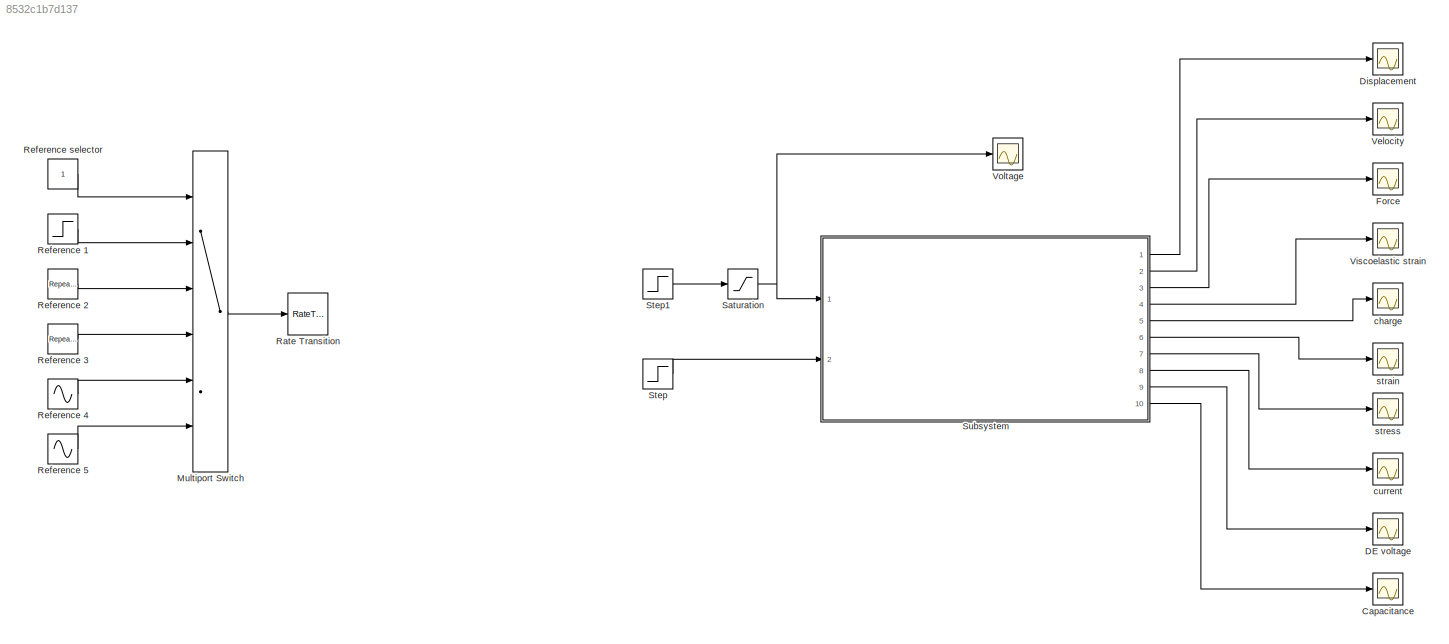
MODEL slx_8532c1b7d137
KIND model
CONFIG AbsTol = auto
CONFIG FixedStep = auto
CONFIG InitFcn = Parameter;
CONFIG MaxStep = auto
CONFIG MinStep = auto
CONFIG RelTol = auto
CONFIG SampleTimeConstraint = Unconstrained
CONFIG Solver = ode23t
CONFIG SolverMode = Auto
CONFIG SolverName = ode23t
CONFIG StartTime = 0.0
CONFIG StopTime = 10
BLOCK [Scope] Capacitance
  Ports = [1]
  ScopeSpecificationString = Simulink.scopes.TimeScopeBlockCfg('CurrentConfiguration', extmgr.ConfigurationSet(extmgr.Configuration('Core','General UI',true),extmgr.Configuration('Core','Source UI',true),extmgr.Configuration('Sources','WiredSimulink',true,'DataLoggingVariableName','ScopeData7'),extmgr.Configuration('Visuals','Time Domain',true,'SerializedDisplays',{struct('MinYLimReal','-10','MaxYLimReal','10','YLabelReal',''...<+1317ch>
BLOCK [Scope] DE voltage
  Ports = [1]
  ScopeSpecificationString = Simulink.scopes.TimeScopeBlockCfg('CurrentConfiguration', extmgr.ConfigurationSet(extmgr.Configuration('Core','General UI',true),extmgr.Configuration('Core','Source UI',true),extmgr.Configuration('Sources','WiredSimulink',true,'DataLoggingVariableName','ScopeData6'),extmgr.Configuration('Visuals','Time Domain',true,'SerializedDisplays',{struct('MinYLimReal','-10','MaxYLimReal','10','YLabelReal',''...<+1317ch>
BLOCK [Scope] Displacement
  Ports = [1]
  ScopeSpecificationString = Simulink.scopes.TimeScopeBlockCfg('CurrentConfiguration', extmgr.ConfigurationSet(extmgr.Configuration('Core','General UI',true),extmgr.Configuration('Core','Source UI',true),extmgr.Configuration('Sources','WiredSimulink',true,'DataLoggingVariableName','ScopeData9'),extmgr.Configuration('Visuals','Time Domain',true,'SerializedDisplays',{struct('MinYLimReal','0.01818','MaxYLimReal','0.01882','YLabe...<+1471ch>
BLOCK [Scope] Force
  Ports = [1]
  ScopeSpecificationString = Simulink.scopes.TimeScopeBlockCfg('CurrentConfiguration', extmgr.ConfigurationSet(extmgr.Configuration('Core','General UI',true),extmgr.Configuration('Core','Source UI',true),extmgr.Configuration('Sources','WiredSimulink',true),extmgr.Configuration('Visuals','Time Domain',true,'SerializedDisplays',{struct('MinYLimReal','-0.39897','MaxYLimReal','3.59073','YLabelReal','','MinYLimMag','0.00000','MaxY...<+1348ch>
BLOCK [MultiPortSwitch] Multiport Switch
  InputSameDT = off
  Inputs = 5
  Ports = [6, 1]
  SaturateOnIntegerOverflow = off
BLOCK [RateTransition] Rate Transition
BLOCK [Step] Reference 1
  After = 0.0184415
  SampleTime = 0
  Time = 0
BLOCK [Reference] Reference 2  REF=simulink/Sources/Repeating
Sequence
Stair
  Ports = [0, 1]
  SourceBlock = simulink/Sources/Repeating\nSequence\nStair
  SourceType = Repeating Sequence Stair
BLOCK [Reference] Reference 3  REF=simulink/Sources/Repeating
Sequence
Stair
  Ports = [0, 1]
  SourceBlock = simulink/Sources/Repeating\nSequence\nStair
  SourceType = Repeating Sequence Stair
BLOCK [Sin] Reference 4
  Amplitude = 0.0188*0.002
  Bias = 0.0188
  Frequency = 2*pi
  Ports = [0, 1]
  SampleTime = 0
BLOCK [Sin] Reference 5
  Amplitude = 0.0188*0.01
  Bias = 0.0188
  Frequency = 2*pi
  Ports = [0, 1]
  SampleTime = 0
BLOCK [Constant] Reference selector
BLOCK [Saturate] Saturation
  InputPortMap = u0
  LowerLimit = 0
  Ports = [1, 1]
  UpperLimit = 2500
  ZeroCross = off
BLOCK [Step] Step
  After = 0*0.1
  SampleTime = 0
  Time = 10
BLOCK [Step] Step1
  After = 1000
  SampleTime = 0
  Time = 0
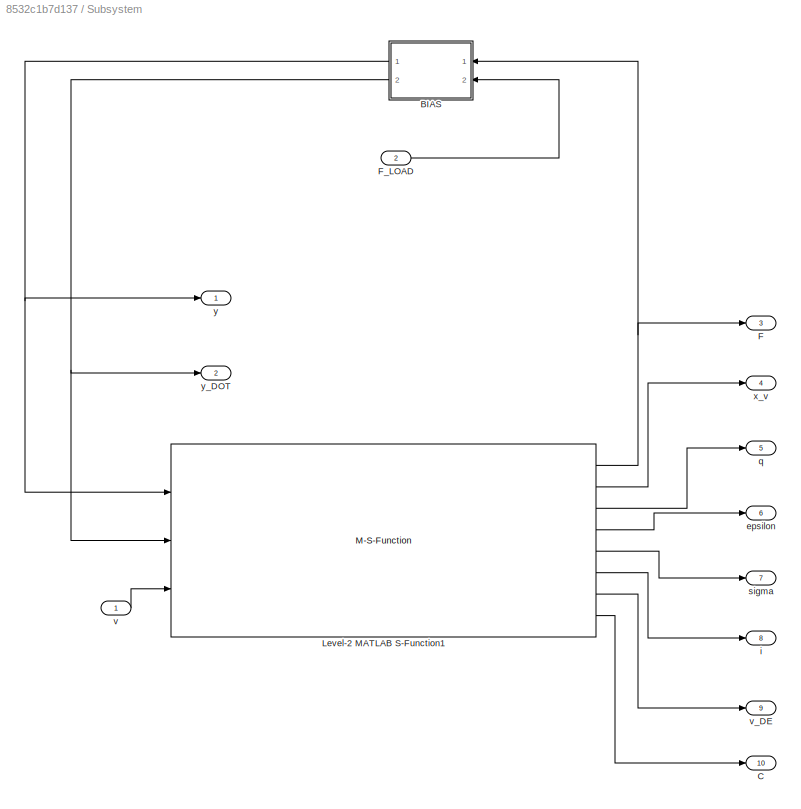
BLOCK [SubSystem] Subsystem
  Ports = [2, 10]
  RequestExecContextInheritance = off
  Variant = off
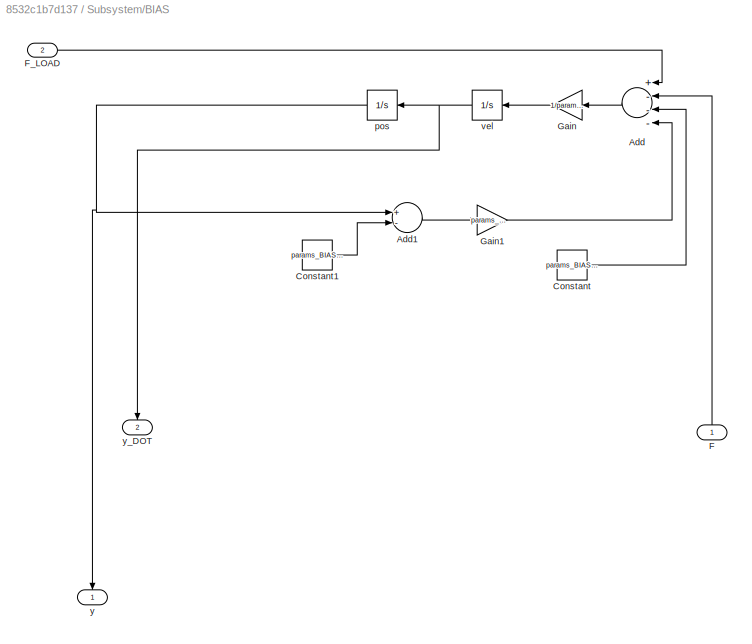
BLOCK [SubSystem] Subsystem/BIAS
  Ports = [2, 2]
  RequestExecContextInheritance = off
  Variant = off
BLOCK [Sum] Subsystem/BIAS/Add
  InputSameDT = off
  Inputs = +---
  OutDataTypeStr = Inherit: Inherit via internal rule
  Ports = [4, 1]
  SaturateOnIntegerOverflow = off
BLOCK [Sum] Subsystem/BIAS/Add1
  InputSameDT = off
  Inputs = +-
  OutDataTypeStr = Inherit: Inherit via internal rule
  Ports = [2, 1]
  SaturateOnIntegerOverflow = off
BLOCK [Constant] Subsystem/BIAS/Constant
  Value = params_BIAS.m*params_BIAS.g
BLOCK [Constant] Subsystem/BIAS/Constant1
  Value = params_BIAS.y0l
BLOCK [Inport] Subsystem/BIAS/F
  IconDisplay = Port number
BLOCK [Inport] Subsystem/BIAS/F_LOAD
  IconDisplay = Port number
  Port = 2
BLOCK [Gain] Subsystem/BIAS/Gain
  Gain = 1/params_BIAS.m
  OutDataTypeStr = Inherit: Inherit via internal rule
  ParamDataTypeStr = Inherit: Inherit via internal rule
  SaturateOnIntegerOverflow = off
BLOCK [Gain] Subsystem/BIAS/Gain1
  Gain = params_BIAS.kl
  OutDataTypeStr = Inherit: Inherit via internal rule
  ParamDataTypeStr = Inherit: Inherit via internal rule
  SaturateOnIntegerOverflow = off
BLOCK [Integrator] Subsystem/BIAS/pos
  InitialCondition = initConds.y
  Ports = [1, 1]
BLOCK [Integrator] Subsystem/BIAS/vel
  InitialCondition = initConds.y_dot
  Ports = [1, 1]
BLOCK [Outport] Subsystem/BIAS/y
  IconDisplay = Port number
BLOCK [Outport] Subsystem/BIAS/y_DOT
  IconDisplay = Port number
  Port = 2
BLOCK [Outport] Subsystem/C
  IconDisplay = Port number
  Port = 10
BLOCK [Outport] Subsystem/F
  IconDisplay = Port number
  Port = 3
BLOCK [Inport] Subsystem/F_LOAD
  IconDisplay = Port number
  Port = 2
BLOCK [M-S-Function] Subsystem/Level-2 MATLAB S-Function1
  FunctionName = sDE_dispIn
  Parameters = params, initConds
  Ports = [3, 8]
BLOCK [Outport] Subsystem/epsilon
  IconDisplay = Port number
  Port = 6
BLOCK [Outport] Subsystem/i
  IconDisplay = Port number
  Port = 8
BLOCK [Outport] Subsystem/q
  IconDisplay = Port number
  Port = 5
BLOCK [Outport] Subsystem/sigma
  IconDisplay = Port number
  Port = 7
BLOCK [Inport] Subsystem/v
  IconDisplay = Port number
BLOCK [Outport] Subsystem/v_DE
  IconDisplay = Port number
  Port = 9
BLOCK [Outport] Subsystem/x_v
  IconDisplay = Port number
  Port = 4
BLOCK [Outport] Subsystem/y
  IconDisplay = Port number
BLOCK [Outport] Subsystem/y_DOT
  IconDisplay = Port number
  Port = 2
BLOCK [Scope] Velocity
  Ports = [1]
  ScopeSpecificationString = Simulink.scopes.TimeScopeBlockCfg('CurrentConfiguration', extmgr.ConfigurationSet(extmgr.Configuration('Core','General UI',true),extmgr.Configuration('Core','Source UI',true),extmgr.Configuration('Sources','WiredSimulink',true,'DataLoggingVariableName','ScopeData8'),extmgr.Configuration('Visuals','Time Domain',true,'SerializedDisplays',{struct('MinYLimReal','-10','MaxYLimReal','10','YLabelReal',''...<+1317ch>
BLOCK [Scope] Viscoelastic strain
  Ports = [1]
  ScopeSpecificationString = Simulink.scopes.TimeScopeBlockCfg('CurrentConfiguration', extmgr.ConfigurationSet(extmgr.Configuration('Core','General UI',true),extmgr.Configuration('Core','Source UI',true),extmgr.Configuration('Sources','WiredSimulink',true,'DataLoggingVariableName','ScopeData1'),extmgr.Configuration('Visuals','Time Domain',true,'SerializedDisplays',{struct('MinYLimReal','0.73805','MaxYLimReal','0.92267','YLabe...<+1445ch>
BLOCK [Scope] Voltage
  Ports = [1]
  ScopeSpecificationString = Simulink.scopes.TimeScopeBlockCfg('CurrentConfiguration', extmgr.ConfigurationSet(extmgr.Configuration('Core','General UI',true),extmgr.Configuration('Core','Source UI',true),extmgr.Configuration('Sources','WiredSimulink',true,'DataLoggingVariableName','ScopeData10'),extmgr.Configuration('Visuals','Time Domain',true,'SerializedDisplays',{struct('MinYLimReal','9944.11841','MaxYLimReal','57654.74252...<+1443ch>
BLOCK [Scope] charge
  Ports = [1]
  ScopeSpecificationString = Simulink.scopes.TimeScopeBlockCfg('CurrentConfiguration', extmgr.ConfigurationSet(extmgr.Configuration('Core','General UI',true),extmgr.Configuration('Core','Source UI',true),extmgr.Configuration('Sources','WiredSimulink',true,'DataLoggingVariableName','ScopeData2'),extmgr.Configuration('Visuals','Time Domain',true,'SerializedDisplays',{struct('MinYLimReal','-10','MaxYLimReal','10','YLabelReal',''...<+1317ch>
BLOCK [Scope] current
  Ports = [1]
  ScopeSpecificationString = Simulink.scopes.TimeScopeBlockCfg('CurrentConfiguration', extmgr.ConfigurationSet(extmgr.Configuration('Core','General UI',true),extmgr.Configuration('Core','Source UI',true),extmgr.Configuration('Sources','WiredSimulink',true,'DataLoggingVariableName','ScopeData5'),extmgr.Configuration('Visuals','Time Domain',true,'SerializedDisplays',{struct('MinYLimReal','-10','MaxYLimReal','10','YLabelReal',''...<+1317ch>
BLOCK [Scope] strain
  Ports = [1]
  ScopeSpecificationString = Simulink.scopes.TimeScopeBlockCfg('CurrentConfiguration', extmgr.ConfigurationSet(extmgr.Configuration('Core','General UI',true),extmgr.Configuration('Core','Source UI',true),extmgr.Configuration('Sources','WiredSimulink',true,'DataLoggingVariableName','ScopeData3'),extmgr.Configuration('Visuals','Time Domain',true,'SerializedDisplays',{struct('MinYLimReal','0.82468','MaxYLimReal','0.824734','YLab...<+1470ch>
BLOCK [Scope] stress
  Ports = [1]
  ScopeSpecificationString = Simulink.scopes.TimeScopeBlockCfg('CurrentConfiguration', extmgr.ConfigurationSet(extmgr.Configuration('Core','General UI',true),extmgr.Configuration('Core','Source UI',true),extmgr.Configuration('Sources','WiredSimulink',true,'DataLoggingVariableName','ScopeData4'),extmgr.Configuration('Visuals','Time Domain',true,'SerializedDisplays',{struct('MinYLimReal','-10','MaxYLimReal','10','YLabelReal',''...<+1317ch>
LINE Multiport Switch:1 -> Rate Transition:1
LINE Reference 1:1 -> Multiport Switch:2
LINE Reference 2:1 -> Multiport Switch:3
LINE Reference 3:1 -> Multiport Switch:4
LINE Reference 4:1 -> Multiport Switch:5
LINE Reference 5:1 -> Multiport Switch:6
LINE Reference selector:1 -> Multiport Switch:1
NET Saturation:1 -> Subsystem:1, Voltage:1
LINE Step1:1 -> Saturation:1
LINE Step:1 -> Subsystem:2
LINE Subsystem/BIAS/Add1:1 -> Subsystem/BIAS/Gain1:1
LINE Subsystem/BIAS/Add:1 -> Subsystem/BIAS/Gain:1
LINE Subsystem/BIAS/Constant1:1 -> Subsystem/BIAS/Add1:2
LINE Subsystem/BIAS/Constant:1 -> Subsystem/BIAS/Add:3
LINE Subsystem/BIAS/F:1 -> Subsystem/BIAS/Add:2
LINE Subsystem/BIAS/F_LOAD:1 -> Subsystem/BIAS/Add:1
LINE Subsystem/BIAS/Gain1:1 -> Subsystem/BIAS/Add:4
LINE Subsystem/BIAS/Gain:1 -> Subsystem/BIAS/vel:1
NET Subsystem/BIAS/pos:1 -> Subsystem/BIAS/Add1:1, Subsystem/BIAS/y:1
NET Subsystem/BIAS/vel:1 -> Subsystem/BIAS/pos:1, Subsystem/BIAS/y_DOT:1
NET Subsystem/BIAS:1 -> Subsystem/Level-2 MATLAB S-Function1:1, Subsystem/y:1
NET Subsystem/BIAS:2 -> Subsystem/Level-2 MATLAB S-Function1:2, Subsystem/y_DOT:1
LINE Subsystem/F_LOAD:1 -> Subsystem/BIAS:2
NET Subsystem/Level-2 MATLAB S-Function1:1 -> Subsystem/BIAS:1, Subsystem/F:1
LINE Subsystem/Level-2 MATLAB S-Function1:2 -> Subsystem/x_v:1
LINE Subsystem/Level-2 MATLAB S-Function1:3 -> Subsystem/q:1
LINE Subsystem/Level-2 MATLAB S-Function1:4 -> Subsystem/epsilon:1
LINE Subsystem/Level-2 MATLAB S-Function1:5 -> Subsystem/sigma:1
LINE Subsystem/Level-2 MATLAB S-Function1:6 -> Subsystem/i:1
LINE Subsystem/Level-2 MATLAB S-Function1:7 -> Subsystem/v_DE:1
LINE Subsystem/Level-2 MATLAB S-Function1:8 -> Subsystem/C:1
LINE Subsystem/v:1 -> Subsystem/Level-2 MATLAB S-Function1:3
LINE Subsystem:1 -> Displacement:1
LINE Subsystem:10 -> Capacitance:1
LINE Subsystem:2 -> Velocity:1
LINE Subsystem:3 -> Force:1
LINE Subsystem:4 -> Viscoelastic strain:1
LINE Subsystem:5 -> charge:1
LINE Subsystem:6 -> strain:1
LINE Subsystem:7 -> stress:1
LINE Subsystem:8 -> current:1
LINE Subsystem:9 -> DE voltage:1
note: NET lines group one-source signal fan-out (src -> all destinations, sorted); 1:1 wires keep LINE
